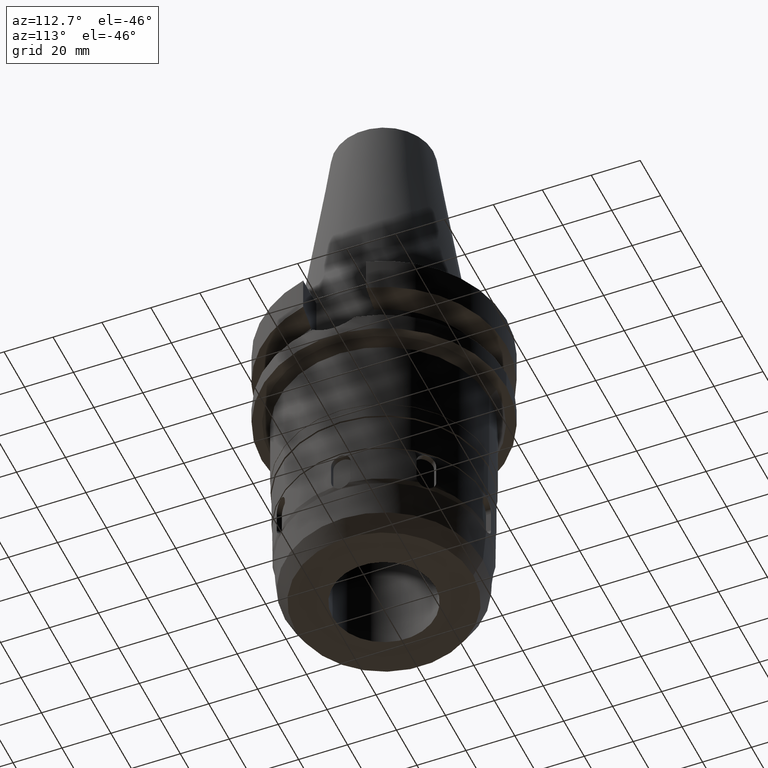
[diagram: clean part render]
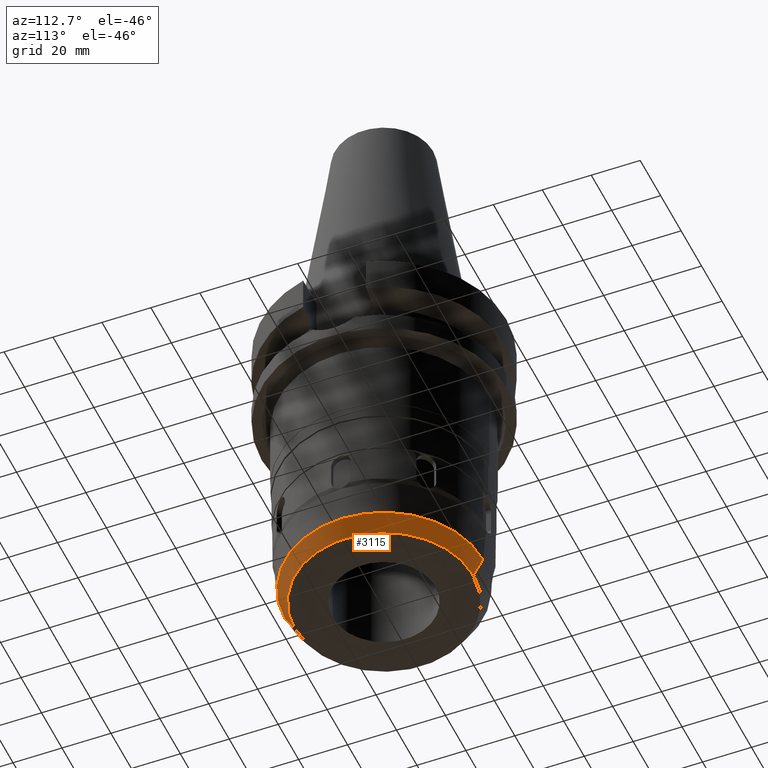
[diagram: same view with one face highlighted and labeled with its STEP entity id]
A machine part, auxiliary view. The second image highlights one B-rep face of the part: STEP entity #3115.
In plain terms, the highlighted conical surface has half-angle 30 deg.
Its self-contained STEP definition (entity closure, byte-faithful):
#262=CARTESIAN_POINT('',(0.E0,0.E0,-1.35E2));
#263=DIRECTION('',(0.E0,0.E0,1.E0));
#264=DIRECTION('',(0.E0,-1.E0,0.E0));
#265=AXIS2_PLACEMENT_3D('',#262,#263,#264);
#294=DIRECTION('',(0.E0,-4.999999999999E-1,-8.660254037845E-1));
#295=VECTOR('',#294,7.909698687897E0);
#296=CARTESIAN_POINT('',(0.E0,4.045484934395E1,-1.2815E2));
#297=LINE('',#296,#295);
#301=CARTESIAN_POINT('',(0.E0,0.E0,-1.2815E2));
#302=DIRECTION('',(0.E0,0.E0,1.E0));
#303=DIRECTION('',(0.E0,-1.E0,0.E0));
#304=AXIS2_PLACEMENT_3D('',#301,#302,#303);
#309=DIRECTION('',(0.E0,4.999999999999E-1,-8.660254037845E-1));
#310=VECTOR('',#309,7.909698687897E0);
#311=CARTESIAN_POINT('',(0.E0,-4.045484934395E1,-1.2815E2));
#312=LINE('',#311,#310);
#2522=CARTESIAN_POINT('',(0.E0,-3.65E1,-1.35E2));
#2523=CARTESIAN_POINT('',(0.E0,3.65E1,-1.35E2));
#2524=VERTEX_POINT('',#2522);
#2525=VERTEX_POINT('',#2523);
#2526=CARTESIAN_POINT('',(0.E0,4.045484934395E1,-1.2815E2));
#2527=VERTEX_POINT('',#2526);
#2528=CARTESIAN_POINT('',(0.E0,-4.045484934395E1,-1.2815E2));
#2529=VERTEX_POINT('',#2528);
#3101=CARTESIAN_POINT('',(0.E0,0.E0,-1.31575E2));
#3102=DIRECTION('',(0.E0,0.E0,1.E0));
#3103=DIRECTION('',(0.E0,1.E0,0.E0));
#3104=AXIS2_PLACEMENT_3D('',#3101,#3102,#3103);
#3105=CONICAL_SURFACE('',#3104,3.847742467197E1,3.E1);
#3107=ORIENTED_EDGE('',*,*,#3106,.T.);
#3108=ORIENTED_EDGE('',*,*,#3090,.F.);
#3110=ORIENTED_EDGE('',*,*,#3109,.F.);
#3112=ORIENTED_EDGE('',*,*,#3111,.T.);
#3113=EDGE_LOOP('',(#3107,#3108,#3110,#3112));
#3114=FACE_OUTER_BOUND('',#3113,.F.);
#266=CIRCLE('',#265,3.65E1);
#305=CIRCLE('',#304,4.045484934395E1);
#3090=EDGE_CURVE('',#2524,#2525,#266,.T.);
#3106=EDGE_CURVE('',#2527,#2525,#297,.T.);
#3109=EDGE_CURVE('',#2529,#2524,#312,.T.);
#3111=EDGE_CURVE('',#2529,#2527,#305,.T.);
#3115=ADVANCED_FACE('',(#3114),#3105,.T.);